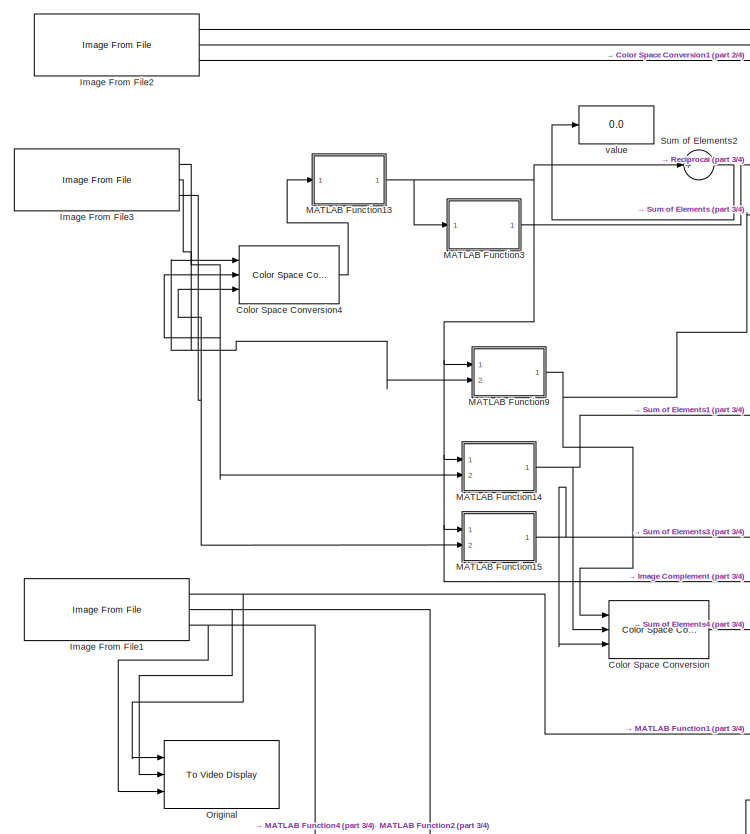
[diagram: root canvas - part 1/4, top left region]
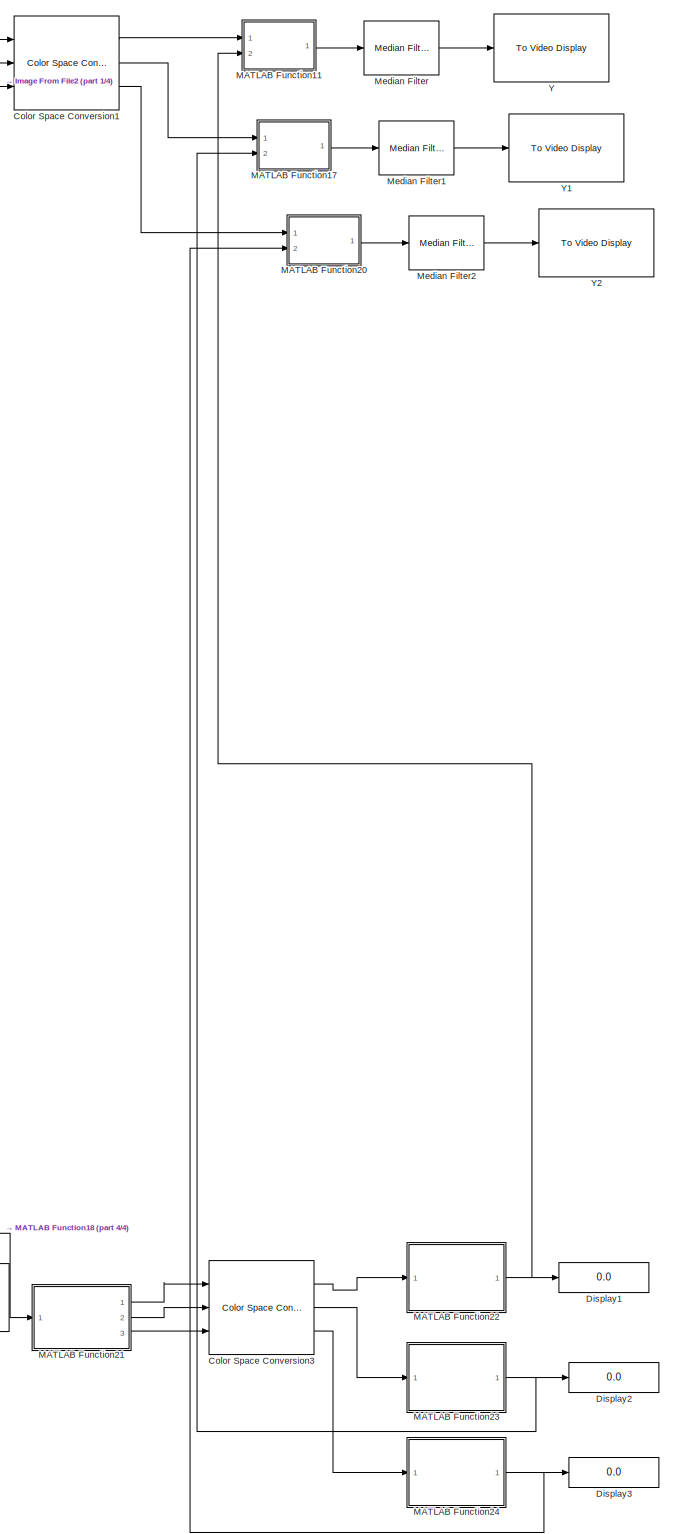
[diagram: root canvas - part 2/4, right side, full height]
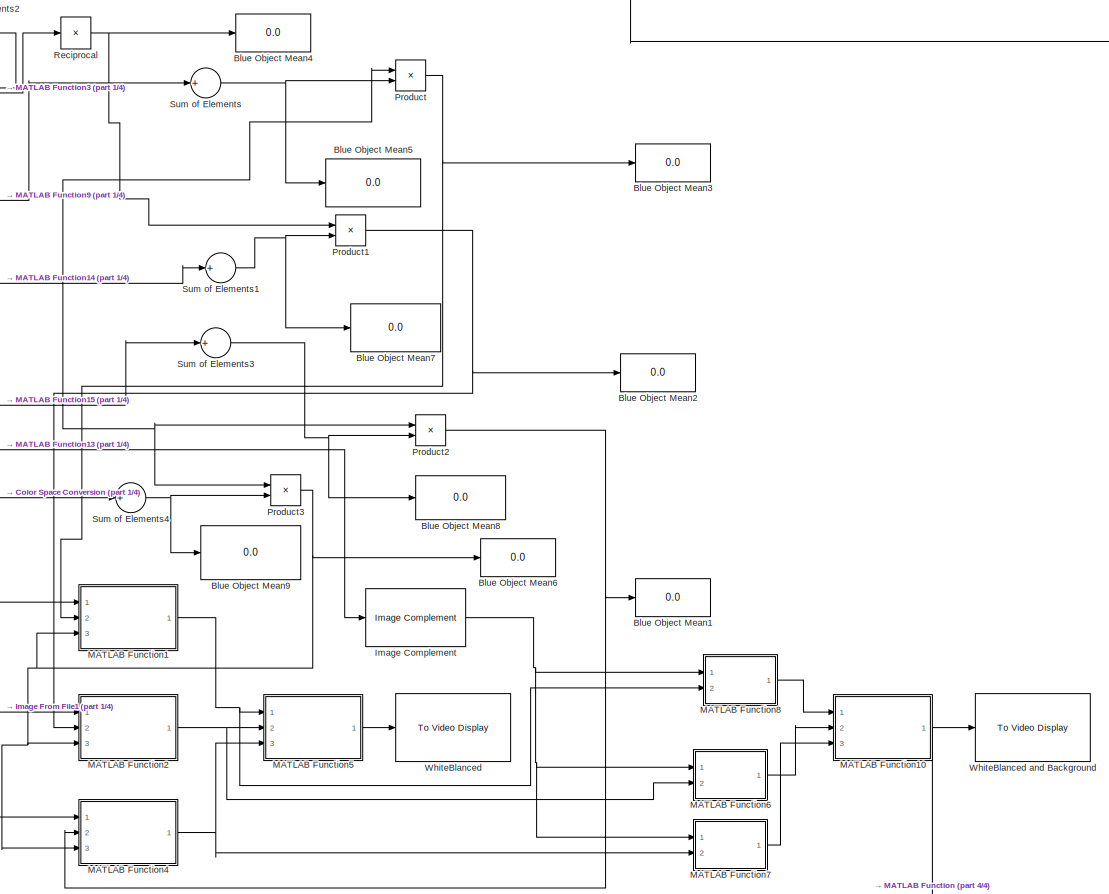
[diagram: root canvas - part 3/4, central region]
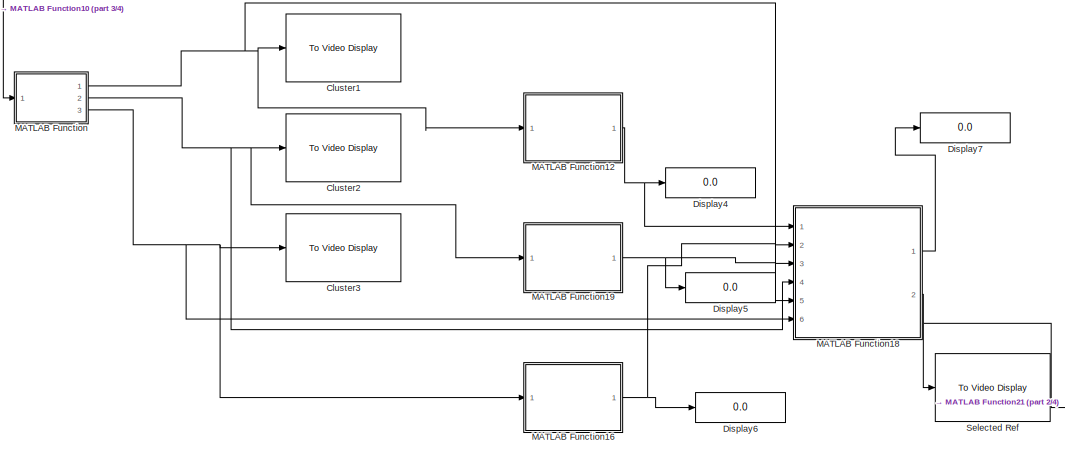
[diagram: root canvas - part 4/4, bottom center region]
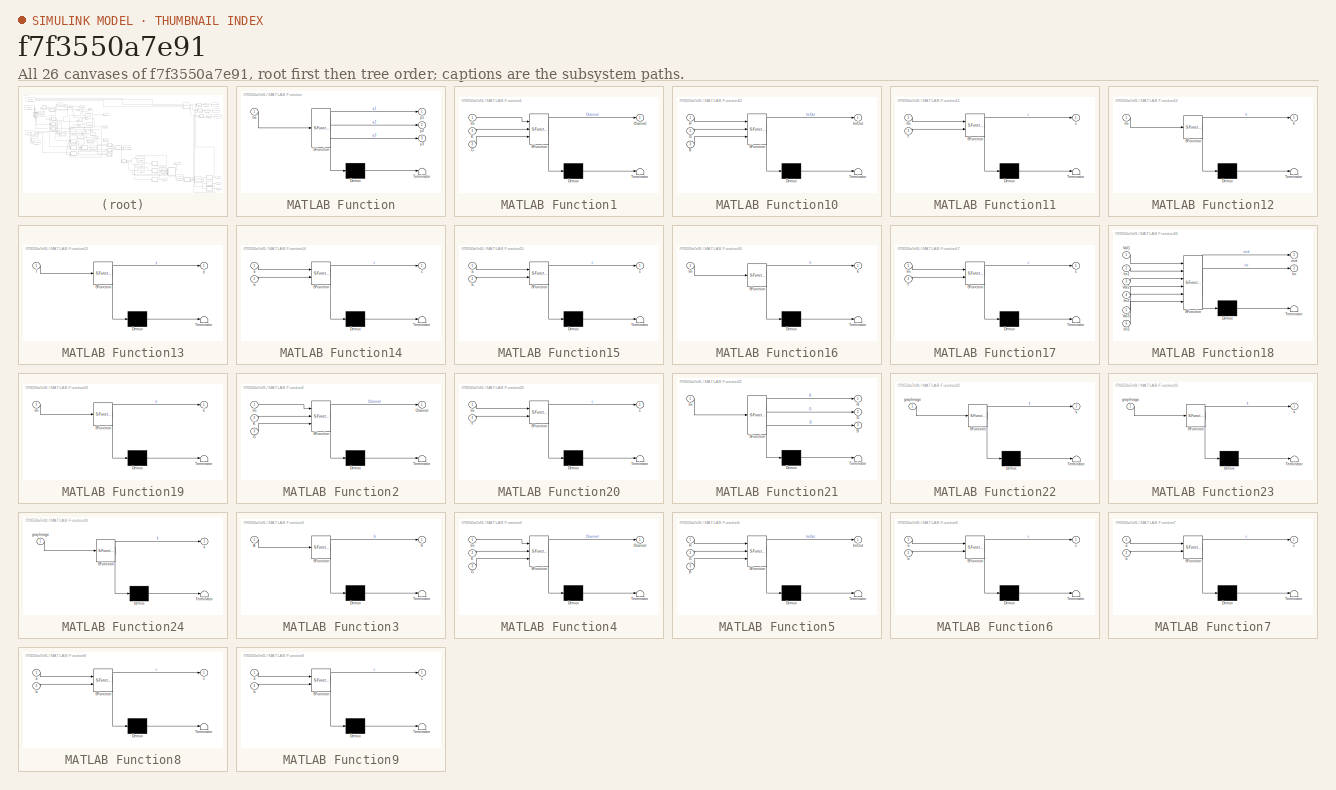
[diagram: thumbnail index - all 26 canvases of the model, root first then tree order]
MODEL slx_f7f3550a7e91
KIND model
CONFIG AbsTol = auto
CONFIG FixedStep = auto
CONFIG MaxStep = auto
CONFIG MinStep = auto
CONFIG RelTol = 1e-3
CONFIG SampleTimeConstraint = Unconstrained
CONFIG Solver = VariableStepAuto
CONFIG SolverMode = Auto
CONFIG SolverName = VariableStepAuto
CONFIG StartTime = 0.0
CONFIG StopTime = 10.0
BLOCK [Display] Blue Object Mean1
  Decimation = 1
  Ports = [1]
BLOCK [Display] Blue Object Mean2
  Decimation = 1
  Ports = [1]
BLOCK [Display] Blue Object Mean3
  Decimation = 1
  Ports = [1]
BLOCK [Display] Blue Object Mean4
  Decimation = 1
  Ports = [1]
BLOCK [Display] Blue Object Mean5
  Decimation = 1
  Format = long
  Ports = [1]
BLOCK [Display] Blue Object Mean6
  Decimation = 1
  Ports = [1]
BLOCK [Display] Blue Object Mean7
  Decimation = 1
  Format = long
  Ports = [1]
BLOCK [Display] Blue Object Mean8
  Decimation = 1
  Format = long
  Ports = [1]
BLOCK [Display] Blue Object Mean9
  Decimation = 1
  Format = long
  Ports = [1]
BLOCK [Reference] Cluster1  REF=visionsinks/To Video Display
  Ports = [1]
  SourceBlock = visionsinks/To Video Display
  SourceType = To Video Display
BLOCK [Reference] Cluster2  REF=visionsinks/To Video Display
  Ports = [1]
  SourceBlock = visionsinks/To Video Display
  SourceType = To Video Display
BLOCK [Reference] Cluster3  REF=visionsinks/To Video Display
  Ports = [1]
  SourceBlock = visionsinks/To Video Display
  SourceType = To Video Display
BLOCK [Reference] Color Space Conversion  REF=visionconversions/Color Space
 Conversion
  Ports = [3, 1]
  SourceBlock = visionconversions/Color Space\n Conversion
  SourceType = Color Space Conversion
BLOCK [Reference] Color Space Conversion1  REF=visionconversions/Color Space
 Conversion
  Ports = [3, 3]
  SourceBlock = visionconversions/Color Space\n Conversion
  SourceType = Color Space Conversion
BLOCK [Reference] Color Space Conversion3  REF=visionconversions/Color Space
 Conversion
  Ports = [3, 3]
  SourceBlock = visionconversions/Color Space\n Conversion
  SourceType = Color Space Conversion
BLOCK [Reference] Color Space Conversion4  REF=visionconversions/Color Space
 Conversion
  Ports = [3, 1]
  SourceBlock = visionconversions/Color Space\n Conversion
  SourceType = Color Space Conversion
BLOCK [Display] Display1
  Decimation = 1
  Ports = [1]
BLOCK [Display] Display2
  Decimation = 1
  Ports = [1]
BLOCK [Display] Display3
  Decimation = 1
  Ports = [1]
BLOCK [Display] Display4
  Decimation = 1
  Ports = [1]
BLOCK [Display] Display5
  Decimation = 1
  Ports = [1]
BLOCK [Display] Display6
  Decimation = 1
  Ports = [1]
BLOCK [Display] Display7
  Decimation = 1
  Ports = [1]
BLOCK [Reference] Image Complement  REF=visionconversions/Image Complement
  Ports = [1, 1]
  SourceBlock = visionconversions/Image Complement
  SourceType = Image Complement
BLOCK [Reference] Image From File1  REF=visionsources/Image From File
  Ports = [0, 3]
  SourceBlock = visionsources/Image From File
  SourceType = Image From File
  Tag = vipblks_nd
BLOCK [Reference] Image From File2  REF=visionsources/Image From File
  Ports = [0, 3]
  SourceBlock = visionsources/Image From File
  SourceType = Image From File
  Tag = vipblks_nd
BLOCK [Reference] Image From File3  REF=visionsources/Image From File
  Ports = [0, 3]
  SourceBlock = visionsources/Image From File
  SourceType = Image From File
  Tag = vipblks_nd
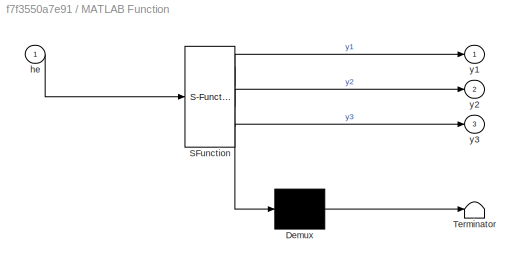
BLOCK [SubSystem] MATLAB Function
  ErrorFcn = Stateflow.Translate.translate
  PermitHierarchicalResolution = ExplicitOnly
  Ports = [1, 3]
  RequestExecContextInheritance = off
  SFBlockType = MATLAB Function
  TreatAsAtomicUnit = on
  Variant = off
BLOCK [Demux] MATLAB Function/ Demux 
  Outputs = 1
  Ports = [1, 1]
BLOCK [S-Function] MATLAB Function/ SFunction 
  EnableBusSupport = on
  FunctionName = sf_sfun
  PortCounts = [1 4]
  Ports = [1, 4]
  SFunctionDeploymentMode = off
  Tag = Stateflow S-Function KMeanClustering 12
BLOCK [Terminator] MATLAB Function/ Terminator 
BLOCK [Inport] MATLAB Function/he
  IconDisplay = Port number
BLOCK [Outport] MATLAB Function/y1
  IconDisplay = Port number
BLOCK [Outport] MATLAB Function/y2
  IconDisplay = Port number
  Port = 2
BLOCK [Outport] MATLAB Function/y3
  IconDisplay = Port number
  Port = 3
BLOCK [SubSystem] MATLAB Function1
  ErrorFcn = Stateflow.Translate.translate
  PermitHierarchicalResolution = ExplicitOnly
  Ports = [3, 1]
  RequestExecContextInheritance = off
  SFBlockType = MATLAB Function
  TreatAsAtomicUnit = on
  Variant = off
BLOCK [Demux] MATLAB Function1/ Demux 
  Outputs = 1
  Ports = [1, 1]
BLOCK [S-Function] MATLAB Function1/ SFunction 
  EnableBusSupport = on
  FunctionName = sf_sfun
  PortCounts = [3 2]
  Ports = [3, 2]
  SFunctionDeploymentMode = off
  Tag = Stateflow S-Function KMeanClustering 1
BLOCK [Terminator] MATLAB Function1/ Terminator 
BLOCK [Outport] MATLAB Function1/Channel
  IconDisplay = Port number
BLOCK [Inport] MATLAB Function1/G
  IconDisplay = Port number
  Port = 3
BLOCK [Inport] MATLAB Function1/Im
  IconDisplay = Port number
BLOCK [Inport] MATLAB Function1/K
  IconDisplay = Port number
  Port = 2
BLOCK [SubSystem] MATLAB Function10
  ErrorFcn = Stateflow.Translate.translate
  PermitHierarchicalResolution = ExplicitOnly
  Ports = [3, 1]
  RequestExecContextInheritance = off
  SFBlockType = MATLAB Function
  TreatAsAtomicUnit = on
  Variant = off
BLOCK [Demux] MATLAB Function10/ Demux 
  Outputs = 1
  Ports = [1, 1]
BLOCK [S-Function] MATLAB Function10/ SFunction 
  EnableBusSupport = on
  FunctionName = sf_sfun
  PortCounts = [3 2]
  Ports = [3, 2]
  SFunctionDeploymentMode = off
  Tag = Stateflow S-Function KMeanClustering 9
BLOCK [Terminator] MATLAB Function10/ Terminator 
BLOCK [Inport] MATLAB Function10/B
  IconDisplay = Port number
  Port = 3
BLOCK [Inport] MATLAB Function10/G
  IconDisplay = Port number
  Port = 2
BLOCK [Outport] MATLAB Function10/ImOut
  IconDisplay = Port number
BLOCK [Inport] MATLAB Function10/R
  IconDisplay = Port number
BLOCK [SubSystem] MATLAB Function11
  ErrorFcn = Stateflow.Translate.translate
  PermitHierarchicalResolution = ExplicitOnly
  Ports = [2, 1]
  RequestExecContextInheritance = off
  SFBlockType = MATLAB Function
  TreatAsAtomicUnit = on
  Variant = off
BLOCK [Demux] MATLAB Function11/ Demux 
  Outputs = 1
  Ports = [1, 1]
BLOCK [S-Function] MATLAB Function11/ SFunction 
  EnableBusSupport = on
  FunctionName = sf_sfun
  PortCounts = [2 2]
  Ports = [2, 2]
  SFunctionDeploymentMode = off
  Tag = Stateflow S-Function KMeanClustering 11
BLOCK [Terminator] MATLAB Function11/ Terminator 
BLOCK [Inport] MATLAB Function11/Im
  IconDisplay = Port number
BLOCK [Inport] MATLAB Function11/T
  IconDisplay = Port number
  Port = 2
BLOCK [Outport] MATLAB Function11/c
  IconDisplay = Port number
BLOCK [SubSystem] MATLAB Function12
  ErrorFcn = Stateflow.Translate.translate
  PermitHierarchicalResolution = ExplicitOnly
  Ports = [1, 1]
  RequestExecContextInheritance = off
  SFBlockType = MATLAB Function
  TreatAsAtomicUnit = on
  Variant = off
BLOCK [Demux] MATLAB Function12/ Demux 
  Outputs = 1
  Ports = [1, 1]
BLOCK [S-Function] MATLAB Function12/ SFunction 
  EnableBusSupport = on
  FunctionName = sf_sfun
  PortCounts = [1 2]
  Ports = [1, 2]
  SFunctionDeploymentMode = off
  Tag = Stateflow S-Function KMeanClustering 13
BLOCK [Terminator] MATLAB Function12/ Terminator 
BLOCK [Inport] MATLAB Function12/Im
  IconDisplay = Port number
BLOCK [Outport] MATLAB Function12/k
  IconDisplay = Port number
BLOCK [SubSystem] MATLAB Function13
  ErrorFcn = Stateflow.Translate.translate
  PermitHierarchicalResolution = ExplicitOnly
  Ports = [1, 1]
  RequestExecContextInheritance = off
  SFBlockType = MATLAB Function
  TreatAsAtomicUnit = on
  Variant = off
BLOCK [Demux] MATLAB Function13/ Demux 
  Outputs = 1
  Ports = [1, 1]
BLOCK [S-Function] MATLAB Function13/ SFunction 
  EnableBusSupport = on
  FunctionName = sf_sfun
  PortCounts = [1 2]
  Ports = [1, 2]
  SFunctionDeploymentMode = off
  Tag = Stateflow S-Function KMeanClustering 14
BLOCK [Terminator] MATLAB Function13/ Terminator 
BLOCK [Inport] MATLAB Function13/I
  IconDisplay = Port number
BLOCK [Outport] MATLAB Function13/y
  IconDisplay = Port number
BLOCK [SubSystem] MATLAB Function14
  ErrorFcn = Stateflow.Translate.translate
  PermitHierarchicalResolution = ExplicitOnly
  Ports = [2, 1]
  RequestExecContextInheritance = off
  SFBlockType = MATLAB Function
  TreatAsAtomicUnit = on
  Variant = off
BLOCK [Demux] MATLAB Function14/ Demux 
  Outputs = 1
  Ports = [1, 1]
BLOCK [S-Function] MATLAB Function14/ SFunction 
  EnableBusSupport = on
  FunctionName = sf_sfun
  PortCounts = [2 2]
  Ports = [2, 2]
  SFunctionDeploymentMode = off
  Tag = Stateflow S-Function KMeanClustering 10
BLOCK [Terminator] MATLAB Function14/ Terminator 
BLOCK [Inport] MATLAB Function14/a
  IconDisplay = Port number
BLOCK [Inport] MATLAB Function14/b
  IconDisplay = Port number
  Port = 2
BLOCK [Outport] MATLAB Function14/c
  IconDisplay = Port number
BLOCK [SubSystem] MATLAB Function15
  ErrorFcn = Stateflow.Translate.translate
  PermitHierarchicalResolution = ExplicitOnly
  Ports = [2, 1]
  RequestExecContextInheritance = off
  SFBlockType = MATLAB Function
  TreatAsAtomicUnit = on
  Variant = off
BLOCK [Demux] MATLAB Function15/ Demux 
  Outputs = 1
  Ports = [1, 1]
BLOCK [S-Function] MATLAB Function15/ SFunction 
  EnableBusSupport = on
  FunctionName = sf_sfun
  PortCounts = [2 2]
  Ports = [2, 2]
  SFunctionDeploymentMode = off
  Tag = Stateflow S-Function KMeanClustering 15
BLOCK [Terminator] MATLAB Function15/ Terminator 
BLOCK [Inport] MATLAB Function15/a
  IconDisplay = Port number
BLOCK [Inport] MATLAB Function15/b
  IconDisplay = Port number
  Port = 2
BLOCK [Outport] MATLAB Function15/c
  IconDisplay = Port number
BLOCK [SubSystem] MATLAB Function16
  ErrorFcn = Stateflow.Translate.translate
  PermitHierarchicalResolution = ExplicitOnly
  Ports = [1, 1]
  RequestExecContextInheritance = off
  SFBlockType = MATLAB Function
  TreatAsAtomicUnit = on
  Variant = off
BLOCK [Demux] MATLAB Function16/ Demux 
  Outputs = 1
  Ports = [1, 1]
BLOCK [S-Function] MATLAB Function16/ SFunction 
  EnableBusSupport = on
  FunctionName = sf_sfun
  PortCounts = [1 2]
  Ports = [1, 2]
  SFunctionDeploymentMode = off
  Tag = Stateflow S-Function KMeanClustering 17
BLOCK [Terminator] MATLAB Function16/ Terminator 
BLOCK [Inport] MATLAB Function16/Im
  IconDisplay = Port number
BLOCK [Outport] MATLAB Function16/k
  IconDisplay = Port number
BLOCK [SubSystem] MATLAB Function17
  ErrorFcn = Stateflow.Translate.translate
  PermitHierarchicalResolution = ExplicitOnly
  Ports = [2, 1]
  RequestExecContextInheritance = off
  SFBlockType = MATLAB Function
  TreatAsAtomicUnit = on
  Variant = off
BLOCK [Demux] MATLAB Function17/ Demux 
  Outputs = 1
  Ports = [1, 1]
BLOCK [S-Function] MATLAB Function17/ SFunction 
  EnableBusSupport = on
  FunctionName = sf_sfun
  PortCounts = [2 2]
  Ports = [2, 2]
  SFunctionDeploymentMode = off
  Tag = Stateflow S-Function KMeanClustering 18
BLOCK [Terminator] MATLAB Function17/ Terminator 
BLOCK [Inport] MATLAB Function17/Im
  IconDisplay = Port number
BLOCK [Inport] MATLAB Function17/T
  IconDisplay = Port number
  Port = 2
BLOCK [Outport] MATLAB Function17/c
  IconDisplay = Port number
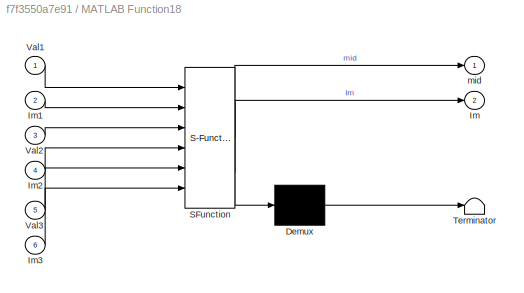
BLOCK [SubSystem] MATLAB Function18
  ErrorFcn = Stateflow.Translate.translate
  PermitHierarchicalResolution = ExplicitOnly
  Ports = [6, 2]
  RequestExecContextInheritance = off
  SFBlockType = MATLAB Function
  TreatAsAtomicUnit = on
  Variant = off
BLOCK [Demux] MATLAB Function18/ Demux 
  Outputs = 1
  Ports = [1, 1]
BLOCK [S-Function] MATLAB Function18/ SFunction 
  EnableBusSupport = on
  FunctionName = sf_sfun
  PortCounts = [6 3]
  Ports = [6, 3]
  SFunctionDeploymentMode = off
  Tag = Stateflow S-Function KMeanClustering 19
BLOCK [Terminator] MATLAB Function18/ Terminator 
BLOCK [Outport] MATLAB Function18/Im
  IconDisplay = Port number
  Port = 2
BLOCK [Inport] MATLAB Function18/Im1
  IconDisplay = Port number
  Port = 2
BLOCK [Inport] MATLAB Function18/Im2
  IconDisplay = Port number
  Port = 4
BLOCK [Inport] MATLAB Function18/Im3
  IconDisplay = Port number
  Port = 6
BLOCK [Inport] MATLAB Function18/Val1
  IconDisplay = Port number
BLOCK [Inport] MATLAB Function18/Val2
  IconDisplay = Port number
  Port = 3
BLOCK [Inport] MATLAB Function18/Val3
  IconDisplay = Port number
  Port = 5
BLOCK [Outport] MATLAB Function18/mid
  IconDisplay = Port number
BLOCK [SubSystem] MATLAB Function19
  ErrorFcn = Stateflow.Translate.translate
  PermitHierarchicalResolution = ExplicitOnly
  Ports = [1, 1]
  RequestExecContextInheritance = off
  SFBlockType = MATLAB Function
  TreatAsAtomicUnit = on
  Variant = off
BLOCK [Demux] MATLAB Function19/ Demux 
  Outputs = 1
  Ports = [1, 1]
BLOCK [S-Function] MATLAB Function19/ SFunction 
  EnableBusSupport = on
  FunctionName = sf_sfun
  PortCounts = [1 2]
  Ports = [1, 2]
  SFunctionDeploymentMode = off
  Tag = Stateflow S-Function KMeanClustering 20
BLOCK [Terminator] MATLAB Function19/ Terminator 
BLOCK [Inport] MATLAB Function19/Im
  IconDisplay = Port number
BLOCK [Outport] MATLAB Function19/k
  IconDisplay = Port number
BLOCK [SubSystem] MATLAB Function2
  ErrorFcn = Stateflow.Translate.translate
  PermitHierarchicalResolution = ExplicitOnly
  Ports = [3, 1]
  RequestExecContextInheritance = off
  SFBlockType = MATLAB Function
  TreatAsAtomicUnit = on
  Variant = off
BLOCK [Demux] MATLAB Function2/ Demux 
  Outputs = 1
  Ports = [1, 1]
BLOCK [S-Function] MATLAB Function2/ SFunction 
  EnableBusSupport = on
  FunctionName = sf_sfun
  PortCounts = [3 2]
  Ports = [3, 2]
  SFunctionDeploymentMode = off
  Tag = Stateflow S-Function KMeanClustering 2
BLOCK [Terminator] MATLAB Function2/ Terminator 
BLOCK [Outport] MATLAB Function2/Channel
  IconDisplay = Port number
BLOCK [Inport] MATLAB Function2/G
  IconDisplay = Port number
  Port = 3
BLOCK [Inport] MATLAB Function2/Im
  IconDisplay = Port number
BLOCK [Inport] MATLAB Function2/K
  IconDisplay = Port number
  Port = 2
BLOCK [SubSystem] MATLAB Function20
  ErrorFcn = Stateflow.Translate.translate
  PermitHierarchicalResolution = ExplicitOnly
  Ports = [2, 1]
  RequestExecContextInheritance = off
  SFBlockType = MATLAB Function
  TreatAsAtomicUnit = on
  Variant = off
BLOCK [Demux] MATLAB Function20/ Demux 
  Outputs = 1
  Ports = [1, 1]
BLOCK [S-Function] MATLAB Function20/ SFunction 
  EnableBusSupport = on
  FunctionName = sf_sfun
  PortCounts = [2 2]
  Ports = [2, 2]
  SFunctionDeploymentMode = off
  Tag = Stateflow S-Function KMeanClustering 21
BLOCK [Terminator] MATLAB Function20/ Terminator 
BLOCK [Inport] MATLAB Function20/Im
  IconDisplay = Port number
BLOCK [Inport] MATLAB Function20/T
  IconDisplay = Port number
  Port = 2
BLOCK [Outport] MATLAB Function20/c
  IconDisplay = Port number
BLOCK [SubSystem] MATLAB Function21
  ErrorFcn = Stateflow.Translate.translate
  PermitHierarchicalResolution = ExplicitOnly
  Ports = [1, 3]
  RequestExecContextInheritance = off
  SFBlockType = MATLAB Function
  TreatAsAtomicUnit = on
  Variant = off
BLOCK [Demux] MATLAB Function21/ Demux 
  Outputs = 1
  Ports = [1, 1]
BLOCK [S-Function] MATLAB Function21/ SFunction 
  EnableBusSupport = on
  FunctionName = sf_sfun
  PortCounts = [1 4]
  Ports = [1, 4]
  SFunctionDeploymentMode = off
  Tag = Stateflow S-Function KMeanClustering 22
BLOCK [Terminator] MATLAB Function21/ Terminator 
BLOCK [Outport] MATLAB Function21/B
  IconDisplay = Port number
  Port = 3
BLOCK [Outport] MATLAB Function21/G
  IconDisplay = Port number
  Port = 2
BLOCK [Inport] MATLAB Function21/Im
  IconDisplay = Port number
BLOCK [Outport] MATLAB Function21/R
  IconDisplay = Port number
BLOCK [SubSystem] MATLAB Function22
  ErrorFcn = Stateflow.Translate.translate
  PermitHierarchicalResolution = ExplicitOnly
  Ports = [1, 1]
  RequestExecContextInheritance = off
  SFBlockType = MATLAB Function
  TreatAsAtomicUnit = on
  Variant = off
BLOCK [Demux] MATLAB Function22/ Demux 
  Outputs = 1
  Ports = [1, 1]
BLOCK [S-Function] MATLAB Function22/ SFunction 
  EnableBusSupport = on
  FunctionName = sf_sfun
  PortCounts = [1 2]
  Ports = [1, 2]
  SFunctionDeploymentMode = off
  Tag = Stateflow S-Function KMeanClustering 23
BLOCK [Terminator] MATLAB Function22/ Terminator 
BLOCK [Inport] MATLAB Function22/grayImage
  IconDisplay = Port number
BLOCK [Outport] MATLAB Function22/k
  IconDisplay = Port number
BLOCK [SubSystem] MATLAB Function23
  ErrorFcn = Stateflow.Translate.translate
  PermitHierarchicalResolution = ExplicitOnly
  Ports = [1, 1]
  RequestExecContextInheritance = off
  SFBlockType = MATLAB Function
  TreatAsAtomicUnit = on
  Variant = off
BLOCK [Demux] MATLAB Function23/ Demux 
  Outputs = 1
  Ports = [1, 1]
BLOCK [S-Function] MATLAB Function23/ SFunction 
  EnableBusSupport = on
  FunctionName = sf_sfun
  PortCounts = [1 2]
  Ports = [1, 2]
  SFunctionDeploymentMode = off
  Tag = Stateflow S-Function KMeanClustering 24
BLOCK [Terminator] MATLAB Function23/ Terminator 
BLOCK [Inport] MATLAB Function23/grayImage
  IconDisplay = Port number
BLOCK [Outport] MATLAB Function23/k
  IconDisplay = Port number
BLOCK [SubSystem] MATLAB Function24
  ErrorFcn = Stateflow.Translate.translate
  PermitHierarchicalResolution = ExplicitOnly
  Ports = [1, 1]
  RequestExecContextInheritance = off
  SFBlockType = MATLAB Function
  TreatAsAtomicUnit = on
  Variant = off
BLOCK [Demux] MATLAB Function24/ Demux 
  Outputs = 1
  Ports = [1, 1]
BLOCK [S-Function] MATLAB Function24/ SFunction 
  EnableBusSupport = on
  FunctionName = sf_sfun
  PortCounts = [1 2]
  Ports = [1, 2]
  SFunctionDeploymentMode = off
  Tag = Stateflow S-Function KMeanClustering 25
BLOCK [Terminator] MATLAB Function24/ Terminator 
BLOCK [Inport] MATLAB Function24/grayImage
  IconDisplay = Port number
BLOCK [Outport] MATLAB Function24/k
  IconDisplay = Port number
BLOCK [SubSystem] MATLAB Function3
  ErrorFcn = Stateflow.Translate.translate
  PermitHierarchicalResolution = ExplicitOnly
  Ports = [1, 1]
  RequestExecContextInheritance = off
  SFBlockType = MATLAB Function
  TreatAsAtomicUnit = on
  Variant = off
BLOCK [Demux] MATLAB Function3/ Demux 
  Outputs = 1
  Ports = [1, 1]
BLOCK [S-Function] MATLAB Function3/ SFunction 
  EnableBusSupport = on
  FunctionName = sf_sfun
  PortCounts = [1 2]
  Ports = [1, 2]
  SFunctionDeploymentMode = off
  Tag = Stateflow S-Function KMeanClustering 3
BLOCK [Terminator] MATLAB Function3/ Terminator 
BLOCK [Inport] MATLAB Function3/A
  IconDisplay = Port number
BLOCK [Outport] MATLAB Function3/S
  IconDisplay = Port number
BLOCK [SubSystem] MATLAB Function4
  ErrorFcn = Stateflow.Translate.translate
  PermitHierarchicalResolution = ExplicitOnly
  Ports = [3, 1]
  RequestExecContextInheritance = off
  SFBlockType = MATLAB Function
  TreatAsAtomicUnit = on
  Variant = off
BLOCK [Demux] MATLAB Function4/ Demux 
  Outputs = 1
  Ports = [1, 1]
BLOCK [S-Function] MATLAB Function4/ SFunction 
  EnableBusSupport = on
  FunctionName = sf_sfun
  PortCounts = [3 2]
  Ports = [3, 2]
  SFunctionDeploymentMode = off
  Tag = Stateflow S-Function KMeanClustering 4
BLOCK [Terminator] MATLAB Function4/ Terminator 
BLOCK [Outport] MATLAB Function4/Channel
  IconDisplay = Port number
BLOCK [Inport] MATLAB Function4/G
  IconDisplay = Port number
  Port = 3
BLOCK [Inport] MATLAB Function4/Im
  IconDisplay = Port number
BLOCK [Inport] MATLAB Function4/K
  IconDisplay = Port number
  Port = 2
BLOCK [SubSystem] MATLAB Function5
  ErrorFcn = Stateflow.Translate.translate
  PermitHierarchicalResolution = ExplicitOnly
  Ports = [3, 1]
  RequestExecContextInheritance = off
  SFBlockType = MATLAB Function
  TreatAsAtomicUnit = on
  Variant = off
BLOCK [Demux] MATLAB Function5/ Demux 
  Outputs = 1
  Ports = [1, 1]
BLOCK [S-Function] MATLAB Function5/ SFunction 
  EnableBusSupport = on
  FunctionName = sf_sfun
  PortCounts = [3 2]
  Ports = [3, 2]
  SFunctionDeploymentMode = off
  Tag = Stateflow S-Function KMeanClustering 5
BLOCK [Terminator] MATLAB Function5/ Terminator 
BLOCK [Inport] MATLAB Function5/B
  IconDisplay = Port number
  Port = 3
BLOCK [Inport] MATLAB Function5/G
  IconDisplay = Port number
  Port = 2
BLOCK [Outport] MATLAB Function5/ImOut
  IconDisplay = Port number
BLOCK [Inport] MATLAB Function5/R
  IconDisplay = Port number
BLOCK [SubSystem] MATLAB Function6
  ErrorFcn = Stateflow.Translate.translate
  PermitHierarchicalResolution = ExplicitOnly
  Ports = [2, 1]
  RequestExecContextInheritance = off
  SFBlockType = MATLAB Function
  TreatAsAtomicUnit = on
  Variant = off
BLOCK [Demux] MATLAB Function6/ Demux 
  Outputs = 1
  Ports = [1, 1]
BLOCK [S-Function] MATLAB Function6/ SFunction 
  EnableBusSupport = on
  FunctionName = sf_sfun
  PortCounts = [2 2]
  Ports = [2, 2]
  SFunctionDeploymentMode = off
  Tag = Stateflow S-Function KMeanClustering 6
BLOCK [Terminator] MATLAB Function6/ Terminator 
BLOCK [Inport] MATLAB Function6/a
  IconDisplay = Port number
BLOCK [Inport] MATLAB Function6/b
  IconDisplay = Port number
  Port = 2
BLOCK [Outport] MATLAB Function6/c
  IconDisplay = Port number
BLOCK [SubSystem] MATLAB Function7
  ErrorFcn = Stateflow.Translate.translate
  PermitHierarchicalResolution = ExplicitOnly
  Ports = [2, 1]
  RequestExecContextInheritance = off
  SFBlockType = MATLAB Function
  TreatAsAtomicUnit = on
  Variant = off
BLOCK [Demux] MATLAB Function7/ Demux 
  Outputs = 1
  Ports = [1, 1]
BLOCK [S-Function] MATLAB Function7/ SFunction 
  EnableBusSupport = on
  FunctionName = sf_sfun
  PortCounts = [2 2]
  Ports = [2, 2]
  SFunctionDeploymentMode = off
  Tag = Stateflow S-Function KMeanClustering 7
BLOCK [Terminator] MATLAB Function7/ Terminator 
BLOCK [Inport] MATLAB Function7/a
  IconDisplay = Port number
BLOCK [Inport] MATLAB Function7/b
  IconDisplay = Port number
  Port = 2
BLOCK [Outport] MATLAB Function7/c
  IconDisplay = Port number
BLOCK [SubSystem] MATLAB Function8
  ErrorFcn = Stateflow.Translate.translate
  PermitHierarchicalResolution = ExplicitOnly
  Ports = [2, 1]
  RequestExecContextInheritance = off
  SFBlockType = MATLAB Function
  TreatAsAtomicUnit = on
  Variant = off
BLOCK [Demux] MATLAB Function8/ Demux 
  Outputs = 1
  Ports = [1, 1]
BLOCK [S-Function] MATLAB Function8/ SFunction 
  EnableBusSupport = on
  FunctionName = sf_sfun
  PortCounts = [2 2]
  Ports = [2, 2]
  SFunctionDeploymentMode = off
  Tag = Stateflow S-Function KMeanClustering 8
BLOCK [Terminator] MATLAB Function8/ Terminator 
BLOCK [Inport] MATLAB Function8/a
  IconDisplay = Port number
BLOCK [Inport] MATLAB Function8/b
  IconDisplay = Port number
  Port = 2
BLOCK [Outport] MATLAB Function8/c
  IconDisplay = Port number
BLOCK [SubSystem] MATLAB Function9
  ErrorFcn = Stateflow.Translate.translate
  PermitHierarchicalResolution = ExplicitOnly
  Ports = [2, 1]
  RequestExecContextInheritance = off
  SFBlockType = MATLAB Function
  TreatAsAtomicUnit = on
  Variant = off
BLOCK [Demux] MATLAB Function9/ Demux 
  Outputs = 1
  Ports = [1, 1]
BLOCK [S-Function] MATLAB Function9/ SFunction 
  EnableBusSupport = on
  FunctionName = sf_sfun
  PortCounts = [2 2]
  Ports = [2, 2]
  SFunctionDeploymentMode = off
  Tag = Stateflow S-Function KMeanClustering 16
BLOCK [Terminator] MATLAB Function9/ Terminator 
BLOCK [Inport] MATLAB Function9/a
  IconDisplay = Port number
BLOCK [Inport] MATLAB Function9/b
  IconDisplay = Port number
  Port = 2
BLOCK [Outport] MATLAB Function9/c
  IconDisplay = Port number
BLOCK [Reference] Median Filter  REF=visionanalysis/Median Filter
  Ports = [1, 1]
  SourceBlock = visionanalysis/Median Filter
  SourceType = Median Filter
BLOCK [Reference] Median Filter1  REF=visionanalysis/Median Filter
  Ports = [1, 1]
  SourceBlock = visionanalysis/Median Filter
  SourceType = Median Filter
BLOCK [Reference] Median Filter2  REF=visionanalysis/Median Filter
  Ports = [1, 1]
  SourceBlock = visionanalysis/Median Filter
  SourceType = Median Filter
BLOCK [Reference] Original  REF=visionsinks/To Video Display
  Ports = [3]
  SourceBlock = visionsinks/To Video Display
  SourceType = To Video Display
BLOCK [Product] Product
  InputSameDT = off
  OutDataTypeStr = uint8
  Ports = [2, 1]
  RndMeth = Floor
  SaturateOnIntegerOverflow = off
BLOCK [Product] Product1
  InputSameDT = off
  OutDataTypeStr = uint8
  Ports = [2, 1]
  RndMeth = Floor
  SaturateOnIntegerOverflow = off
BLOCK [Product] Product2
  InputSameDT = off
  OutDataTypeStr = uint8
  Ports = [2, 1]
  RndMeth = Floor
  SaturateOnIntegerOverflow = off
BLOCK [Product] Product3
  InputSameDT = off
  OutDataTypeStr = uint8
  Ports = [2, 1]
  RndMeth = Floor
  SaturateOnIntegerOverflow = off
BLOCK [Product] Reciprocal
  InputSameDT = off
  Inputs = /
  OutDataTypeStr = double
  Ports = [1, 1]
BLOCK [Reference] Selected Ref  REF=visionsinks/To Video Display
  Ports = [1]
  SourceBlock = visionsinks/To Video Display
  SourceType = To Video Display
BLOCK [Sum] Sum of Elements
  InputSameDT = off
  Inputs = +
  OutDataTypeStr = Inherit: Inherit via internal rule
  Ports = [1, 1]
  SaturateOnIntegerOverflow = off
BLOCK [Sum] Sum of Elements1
  InputSameDT = off
  Inputs = +
  OutDataTypeStr = Inherit: Inherit via internal rule
  Ports = [1, 1]
  SaturateOnIntegerOverflow = off
BLOCK [Sum] Sum of Elements2
  InputSameDT = off
  Inputs = +
  OutDataTypeStr = Inherit: Inherit via internal rule
  Ports = [1, 1]
  SaturateOnIntegerOverflow = off
BLOCK [Sum] Sum of Elements3
  InputSameDT = off
  Inputs = +
  OutDataTypeStr = Inherit: Inherit via internal rule
  Ports = [1, 1]
  SaturateOnIntegerOverflow = off
BLOCK [Sum] Sum of Elements4
  InputSameDT = off
  Inputs = +
  OutDataTypeStr = Inherit: Inherit via internal rule
  Ports = [1, 1]
  SaturateOnIntegerOverflow = off
BLOCK [Reference] WhiteBlanced  REF=visionsinks/To Video Display
  Ports = [1]
  SourceBlock = visionsinks/To Video Display
  SourceType = To Video Display
BLOCK [Reference] WhiteBlanced and Background  REF=visionsinks/To Video Display
  Ports = [1]
  SourceBlock = visionsinks/To Video Display
  SourceType = To Video Display
BLOCK [Reference] Y  REF=visionsinks/To Video Display
  Ports = [1]
  SourceBlock = visionsinks/To Video Display
  SourceType = To Video Display
BLOCK [Reference] Y1  REF=visionsinks/To Video Display
  Ports = [1]
  SourceBlock = visionsinks/To Video Display
  SourceType = To Video Display
BLOCK [Reference] Y2  REF=visionsinks/To Video Display
  Ports = [1]
  SourceBlock = visionsinks/To Video Display
  SourceType = To Video Display
BLOCK [Display] value
  Decimation = 1
  Ports = [1]
LINE Color Space Conversion1:1 -> MATLAB Function11:1
LINE Color Space Conversion1:2 -> MATLAB Function17:1
LINE Color Space Conversion1:3 -> MATLAB Function20:1
LINE Color Space Conversion3:1 -> MATLAB Function22:1
LINE Color Space Conversion3:2 -> MATLAB Function23:1
LINE Color Space Conversion3:3 -> MATLAB Function24:1
LINE Color Space Conversion4:1 -> MATLAB Function13:1
LINE Color Space Conversion:1 -> Sum of Elements4:1
NET Image Complement:1 -> MATLAB Function6:1, MATLAB Function7:1, MATLAB Function8:1
NET Image From File1:1 -> MATLAB Function1:1, Original:1
NET Image From File1:2 -> MATLAB Function2:1, Original:2
NET Image From File1:3 -> MATLAB Function4:1, Original:3
LINE Image From File2:1 -> Color Space Conversion1:1
LINE Image From File2:2 -> Color Space Conversion1:2
LINE Image From File2:3 -> Color Space Conversion1:3
NET Image From File3:1 -> Color Space Conversion4:1, MATLAB Function9:2
NET Image From File3:2 -> Color Space Conversion4:2, MATLAB Function14:2
NET Image From File3:3 -> Color Space Conversion4:3, MATLAB Function15:2
NET MATLAB Function10:1 -> MATLAB Function:1, WhiteBlanced and Background:1
LINE MATLAB Function11:1 -> Median Filter:1
NET MATLAB Function12:1 -> Display4:1, MATLAB Function18:1
NET MATLAB Function13:1 -> Image Complement:1, MATLAB Function14:1, MATLAB Function15:1, MATLAB Function3:1, MATLAB Function9:1, Sum of Elements2:1
NET MATLAB Function14:1 -> Color Space Conversion:2, Sum of Elements1:1
NET MATLAB Function15:1 -> Color Space Conversion:3, Sum of Elements3:1
NET MATLAB Function16:1 -> Display6:1, MATLAB Function18:3
LINE MATLAB Function17:1 -> Median Filter1:1
LINE MATLAB Function18:1 -> Display7:1
NET MATLAB Function18:2 -> MATLAB Function21:1, Selected Ref:1
NET MATLAB Function19:1 -> Display5:1, MATLAB Function18:5
NET MATLAB Function1:1 -> MATLAB Function5:1, MATLAB Function8:2
LINE MATLAB Function20:1 -> Median Filter2:1
LINE MATLAB Function21:1 -> Color Space Conversion3:1
LINE MATLAB Function21:2 -> Color Space Conversion3:2
LINE MATLAB Function21:3 -> Color Space Conversion3:3
NET MATLAB Function22:1 -> Display1:1, MATLAB Function11:2
NET MATLAB Function23:1 -> Display2:1, MATLAB Function17:2
NET MATLAB Function24:1 -> Display3:1, MATLAB Function20:2
NET MATLAB Function2:1 -> MATLAB Function5:2, MATLAB Function6:2
LINE MATLAB Function3:1 -> Reciprocal:1
NET MATLAB Function4:1 -> MATLAB Function5:3, MATLAB Function7:2
LINE MATLAB Function5:1 -> WhiteBlanced:1
LINE MATLAB Function6:1 -> MATLAB Function10:2
LINE MATLAB Function7:1 -> MATLAB Function10:3
LINE MATLAB Function8:1 -> MATLAB Function10:1
NET MATLAB Function9:1 -> Color Space Conversion:1, Sum of Elements:1
NET MATLAB Function:1 -> Cluster1:1, MATLAB Function12:1, MATLAB Function18:2
NET MATLAB Function:2 -> Cluster2:1, MATLAB Function18:4, MATLAB Function19:1
NET MATLAB Function:3 -> Cluster3:1, MATLAB Function16:1, MATLAB Function18:6
LINE Median Filter1:1 -> Y1:1
LINE Median Filter2:1 -> Y2:1
LINE Median Filter:1 -> Y:1
NET Product1:1 -> Blue Object Mean2:1, MATLAB Function2:2
NET Product2:1 -> Blue Object Mean1:1, MATLAB Function4:2
NET Product3:1 -> Blue Object Mean6:1, MATLAB Function1:3, MATLAB Function2:3, MATLAB Function4:3
NET Product:1 -> Blue Object Mean3:1, MATLAB Function1:2
NET Reciprocal:1 -> Blue Object Mean4:1, Product1:1, Product2:1, Product3:1, Product:1
NET Sum of Elements1:1 -> Blue Object Mean7:1, Product1:2
LINE Sum of Elements2:1 -> value:1
NET Sum of Elements3:1 -> Blue Object Mean8:1, Product2:2
NET Sum of Elements4:1 -> Blue Object Mean9:1, Product3:2
NET Sum of Elements:1 -> Blue Object Mean5:1, Product:2
note: NET lines group one-source signal fan-out (src -> all destinations, sorted); 1:1 wires keep LINE
CHART MATLAB Function1 states=1 transitions=1
  STATE_LABEL 'eML_blk_kernel()'
  STATE_LABEL 'SCRIPT:\nfunction Channel = fcn(Im,K,G)\nChannel = uint8(double(Im) *double(G)/double(K));\nreturn'
CHART MATLAB Function2 states=1 transitions=1
  STATE_LABEL 'eML_blk_kernel()'
  STATE_LABEL 'SCRIPT:\nfunction Channel = fcn(Im,K,G)\nChannel = uint8(double(Im) *double(G)/double(K));\nreturn'
CHART MATLAB Function3 states=1 transitions=1
  STATE_LABEL 'eML_blk_kernel()'
  STATE_LABEL 'SCRIPT:\nfunction S = fcn(A)\n%#codegen\nS = sum(A(:))/100;'
CHART MATLAB Function4 states=1 transitions=1
  STATE_LABEL 'eML_blk_kernel()'
  STATE_LABEL 'SCRIPT:\nfunction Channel = fcn(Im,K,G)\nChannel = uint8(double(Im) *double(G)/double(K));\nreturn'
CHART MATLAB Function5 states=1 transitions=1
  STATE_LABEL 'eML_blk_kernel()'
  STATE_LABEL 'SCRIPT:\nfunction ImOut = fcn(R,G,B)\nImOut = cat(3, R, G, B);\nreturn'
CHART MATLAB Function6 states=1 transitions=1
  STATE_LABEL 'eML_blk_kernel()'
  STATE_LABEL 'SCRIPT:\nfunction c = fcn(a,b)\n%#codegen\n%c=logical(a).*double(b);\nc=uint8(a).*uint8(b);'
CHART MATLAB Function7 states=1 transitions=1
  STATE_LABEL 'eML_blk_kernel()'
  STATE_LABEL 'SCRIPT:\nfunction c = fcn(a,b)\n%#codegen\n%c=logical(a).*double(b);\nc=uint8(a).*uint8(b);'
CHART MATLAB Function8 states=1 transitions=1
  STATE_LABEL 'eML_blk_kernel()'
  STATE_LABEL 'SCRIPT:\nfunction c = fcn(a,b)\n%#codegen\nc=uint8(a).*uint8(b);\n%c=uint8(b);'
CHART MATLAB Function10 states=1 transitions=1
  STATE_LABEL 'eML_blk_kernel()'
  STATE_LABEL 'SCRIPT:\nfunction ImOut = fcn(R,G,B)\nImOut = cat(3, R, G, B);\nreturn'
CHART MATLAB Function14 states=1 transitions=1
  STATE_LABEL 'eML_blk_kernel()'
  STATE_LABEL 'SCRIPT:\nfunction c = fcn(a,b)\n%#codegen\nc=a.*b;\nreturn'
CHART MATLAB Function11 states=1 transitions=1
  STATE_LABEL 'eML_blk_kernel()'
  STATE_LABEL "SCRIPT:\nfunction c = fcn(Im,T)\ncoder.extrinsic('im2bw');\nc=uint8(Im(:,:,1));\nc=uint8(im2bw(Im,double(T/255)));"
CHART MATLAB Function states=1 transitions=1
  STATE_LABEL 'eML_blk_kernel()'
  STATE_LABEL "SCRIPT:\nfunction [y1,y2,y3] = fcn(he)\ncoder.extrinsic('makecform');\ncform = makecform('srgb2lab');\ncoder.extrinsic('applycform');\ncoder.extrinsic('image');\nlab_he = (applycform(he,cform));\nu=size(he);\np =(zeros(u(1),u(2),3));\np=im2double(lab_he);\nR=p(:,:,1);\nG=p(:,:,2);\nB=p(:,:,3);\nGB=(zeros(u(1),u(2),2));\nGB=cat(3,G,B);\nab=(zeros(u(1),u(2),2));\nab =double(GB);\nnrows = size(ab,1);\nncols = size(ab,...<+521ch>"
CHART MATLAB Function12 states=1 transitions=1
  STATE_LABEL 'eML_blk_kernel()'
  STATE_LABEL "SCRIPT:\nfunction k = fcn(Im)\ngrayImage=rgb2gray(Im);\ncoder.extrinsic('graythresh');\nbw=logical(grayImage);\nlevel = graythresh(grayImage);\nbw = im2bw(grayImage,double(level));\nk=50.0;\n%bw=grayImage;\n%thresh = multithresh(grayImage,2);\n%bw = imquantize(grayImage,thresh);%im2bw(uint8(grayImage));\n\n% negate the image so that the objects are white, and close the holes\n\nbw2 = imclose(~bw,strel('disk',4)...<+430ch>"  <repeated x3 — deduplicated; at blocks: MATLAB Function12, MATLAB Function16, MATLAB Function19>
CHART MATLAB Function13 states=1 transitions=1
  STATE_LABEL 'eML_blk_kernel()'
  STATE_LABEL "SCRIPT:\nfunction y = fcn(I)\n%#codegen\ny=I;\n coder.extrinsic('graythresh');\nlevel = graythresh(I);\nBW = double(im2bw(I,level));\ny = BW;"
CHART MATLAB Function15 states=1 transitions=1
  STATE_LABEL 'eML_blk_kernel()'
  STATE_LABEL 'SCRIPT:\nfunction c = fcn(a,b)\n%#codegen\nc=a.*b;\nreturn'
CHART MATLAB Function9 states=1 transitions=1
  STATE_LABEL 'eML_blk_kernel()'
  STATE_LABEL 'SCRIPT:\nfunction c = fcn(a,b)\n%#codegen\nc=a.*b;\nreturn'
CHART MATLAB Function16 states=1 transitions=1
  STATE_LABEL 'eML_blk_kernel()'
CHART MATLAB Function17 states=1 transitions=1
  STATE_LABEL 'eML_blk_kernel()'
  STATE_LABEL "SCRIPT:\nfunction c = fcn(Im,T)\n%#codegen\ncoder.extrinsic('im2bw');\nc=uint8(Im(:,:,1));\nc=uint8(im2bw(Im,double(T/255)));"
CHART MATLAB Function18 states=1 transitions=1
  STATE_LABEL 'eML_blk_kernel()'
  STATE_LABEL 'SCRIPT:\nfunction [mid,Im] = fcn(Val1,Im1,Val2,Im2,Val3,Im3)\nA=[Val1,Val2,Val3];\nB = sort(A);\nmid=B(2);\nif Val1==mid\n    Im=Im1;\nelseif Val2==mid\n    Im=Im2;\nelse \n    Im=Im3;\nend'
CHART MATLAB Function19 states=1 transitions=1
  STATE_LABEL 'eML_blk_kernel()'
CHART MATLAB Function20 states=1 transitions=1
  STATE_LABEL 'eML_blk_kernel()'
  STATE_LABEL "SCRIPT:\nfunction c = fcn(Im,T)\n%#codegen\ncoder.extrinsic('im2bw');\nc=uint8(Im(:,:,1));\nc=uint8(im2bw(Im,double(T/255)));\n%c=uint8(b);"
CHART MATLAB Function21 states=1 transitions=1
  STATE_LABEL 'eML_blk_kernel()'
  STATE_LABEL 'SCRIPT:\nfunction [R,G,B] = fcn(Im)\nR=Im(:,:,1);\nG=Im(:,:,2);\nB=Im(:,:,3);'
CHART MATLAB Function22 states=1 transitions=1
  STATE_LABEL 'eML_blk_kernel()'
  STATE_LABEL "SCRIPT:\nfunction k = fcn(grayImage)\ncoder.extrinsic('graythresh');\nbw=logical(grayImage);\nlevel = graythresh(grayImage);\nbw = im2bw(grayImage,double(level));\nk=50.0;\n%bw=grayImage;\n%thresh = multithresh(grayImage,2);\n%bw = imquantize(grayImage,thresh);%im2bw(uint8(grayImage));\n\n% negate the image so that the objects are white, and close the holes\n\nbw2 = imclose(~bw,strel('disk',4));\nnl=1;\n% label ...<+413ch>"
CHART MATLAB Function23 states=1 transitions=1
  STATE_LABEL 'eML_blk_kernel()'
  STATE_LABEL "SCRIPT:\nfunction k = fcn(grayImage)\n\ncoder.extrinsic('graythresh');\nbw=logical(grayImage);\nlevel = graythresh(grayImage);\nbw = im2bw(grayImage,double(level));\nk=50.0;\n%bw=grayImage;\n%thresh = multithresh(grayImage,2);\n%bw = imquantize(grayImage,thresh);%im2bw(uint8(grayImage));\n\n% negate the image so that the objects are white, and close the holes\n\nbw2 = imclose(~bw,strel('disk',4));\nnl=1;\n% label...<+414ch>"
CHART MATLAB Function24 states=1 transitions=1
  STATE_LABEL 'eML_blk_kernel()'
  STATE_LABEL "SCRIPT:\nfunction k = fcn(grayImage)\n\ncoder.extrinsic('graythresh');\nbw=logical(grayImage);\nlevel = graythresh(grayImage);\nbw = im2bw(grayImage,double(level));\nk=50.0;\n%bw=grayImage;\n%thresh = multithresh(grayImage,2);\n%bw = imquantize(grayImage,thresh);%im2bw(uint8(grayImage));\n\n% negate the image so that the objects are white, and close the holes\n\nbw2 = imclose(~bw,strel('disk',4));\nnl=1;\n% label...<+414ch>"
